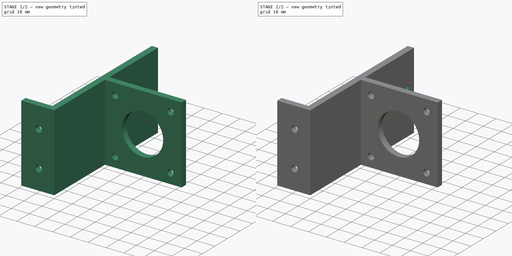
[diagram: build sequence overview — one tinted view per stage of 2, left to right]
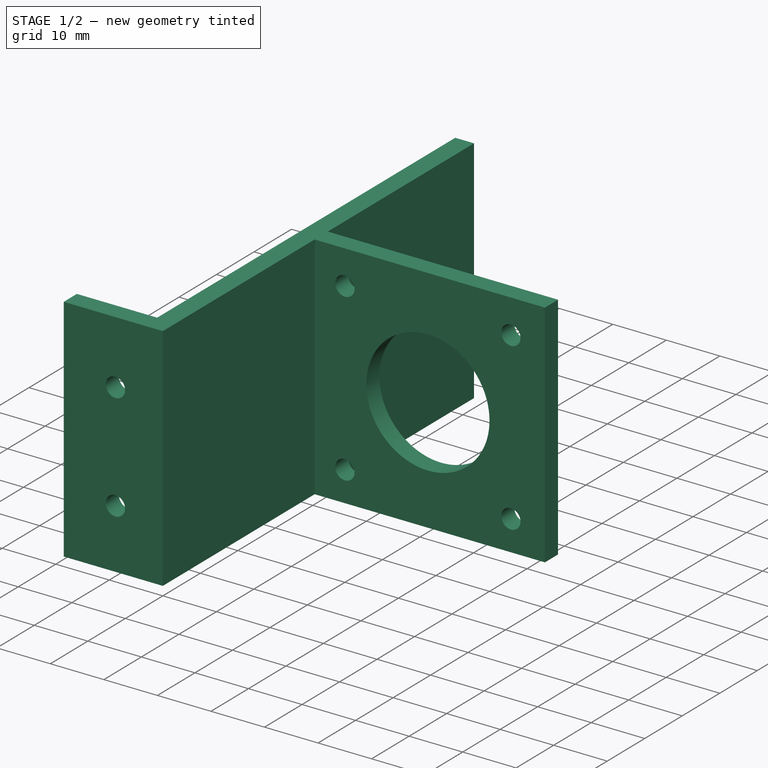
[diagram: stage 1 of 2 — iso view after this stage's code; geometry added in this stage tinted green]
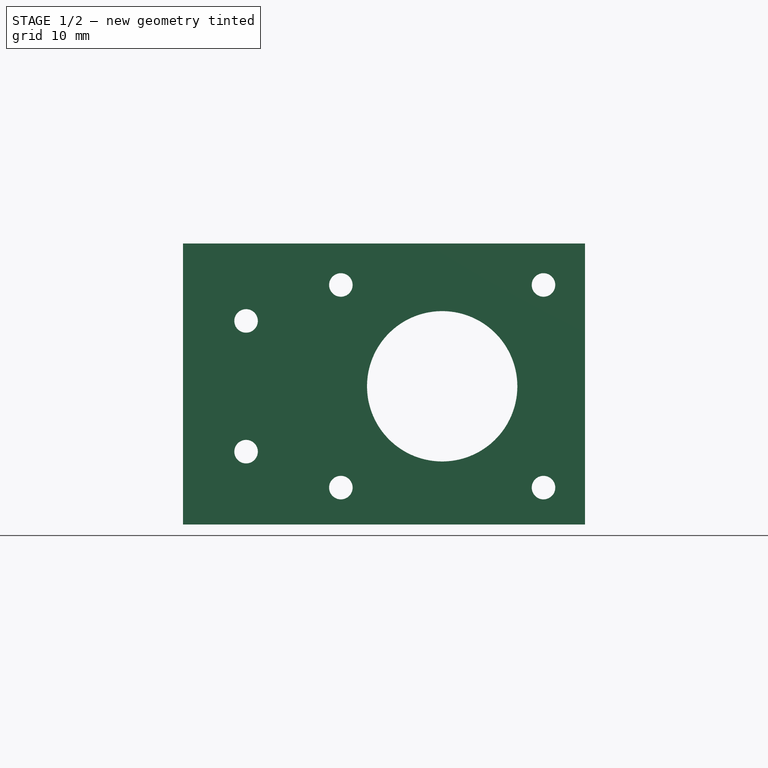
[diagram: stage 1 of 2 — front view after this stage's code; geometry added in this stage tinted green]
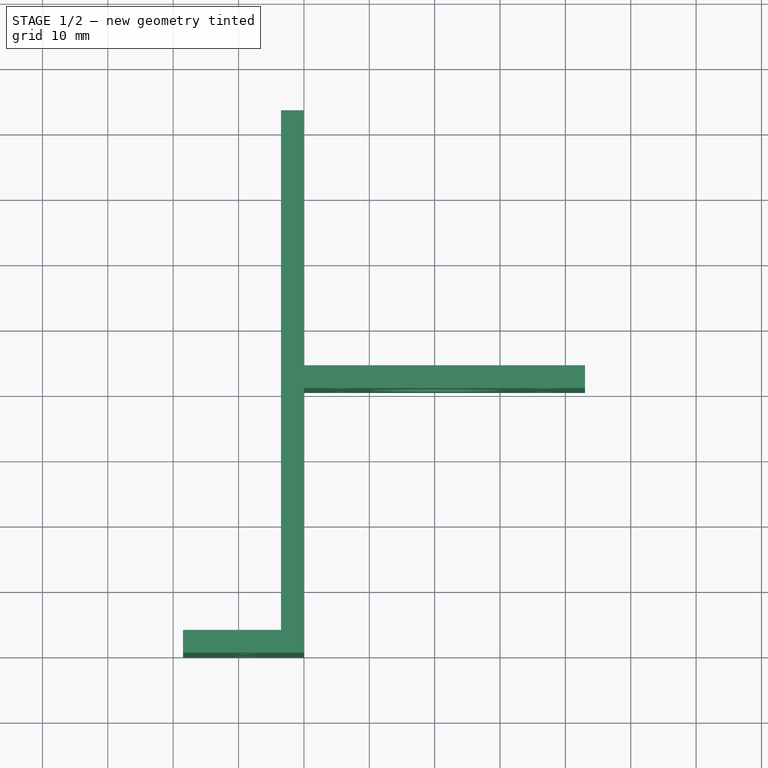
[diagram: stage 1 of 2 — top view after this stage's code; geometry added in this stage tinted green]
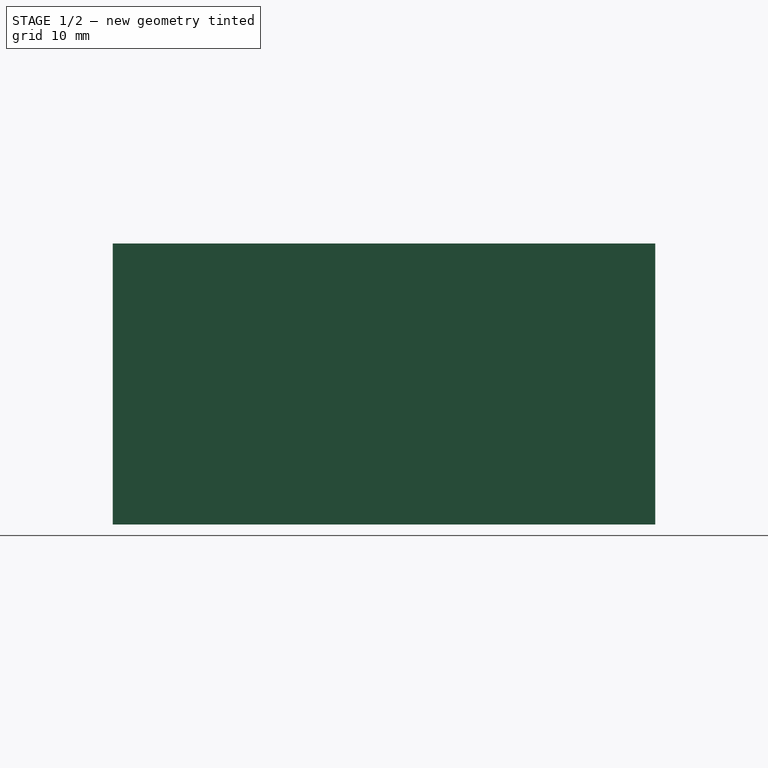
[diagram: stage 1 of 2 — right view after this stage's code; geometry added in this stage tinted green]
FCSTD DOCUMENT  (FreeCAD 0.16R6706 (Git))
Label: Suporte Motor Piso
License: All rights reserved
LicenseURL: http://en.wikipedia.org/wiki/All_rights_reserved
objects: Sketcher::SketchObject×3, PartDesign::Pocket×2, PartDesign::Pad×1
note: 9 computed .brp shape members not serialized (recipe doc carries the construction recipe); baked Part::Feature solids carry a one-line shape summary decoded from their .brp

FEATURE [Sketcher::SketchObject] Sketch
  sketch-geometry (10):
    g0: LineSegment StartX=-18.5 StartY=3.5 StartZ=0 EndX=-3.5 EndY=3.5 EndZ=0
    g1: LineSegment StartX=-3.5 StartY=3.5 StartZ=0 EndX=-3.5 EndY=83 EndZ=0
    g2: LineSegment StartX=-3.5 StartY=83 StartZ=0 EndX=0 EndY=83 EndZ=0
    g3: LineSegment StartX=0 StartY=40.5 StartZ=0 EndX=43 EndY=40.5 EndZ=0
    g4: LineSegment StartX=43 StartY=40.5 StartZ=0 EndX=43 EndY=44 EndZ=0
    g5: LineSegment StartX=43 StartY=44 StartZ=0 EndX=0 EndY=44 EndZ=0
    g6: LineSegment StartX=0 StartY=0 StartZ=0 EndX=-18.5 EndY=0 EndZ=0
    g7: LineSegment StartX=-18.5 StartY=0 StartZ=0 EndX=-18.5 EndY=3.5 EndZ=0
    g8: LineSegment StartX=0 StartY=83 StartZ=0 EndX=0 EndY=44 EndZ=0
    g9: LineSegment StartX=0 StartY=40.5 StartZ=0 EndX=0 EndY=0 EndZ=0
  constraints (29):
    c: Coincident(g0,g1)
    c: Coincident(g1,g2)
    c: Coincident(g3,g4)
    c: Coincident(g4,g5)
    c: Coincident(g6,g7)
    c: Coincident(g7,g0)
    c: Vertical(g7)
    c: Vertical(g1)
    c: Vertical(g4)
    c: Horizontal(g6)
    c: Horizontal(g0)
    c: Horizontal(g5)
    c: Horizontal(g3)
    c: Horizontal(g2)
    c: DistanceY(g6,g1) = 83
    c: DistanceY(g7,g7) = 3.5
    c: Equal(g5,g3)
    c: Equal(g4,g7)
    c: Equal(g7,g2)
    c: DistanceX(g5,g5) = 43
    c: Coincident(g5,g8)
    c: Coincident(g2,g8)
    c: Vertical(g8)
    c: Coincident(g9,g3)
    c: Coincident(g9,g6)
    c: Vertical(g9)
    c: DistanceX(g0,g0) = 15
    c: Coincident(g6,g-1)
    c: DistanceY(g-1,g3) = 40.5
FEATURE [PartDesign::Pad] Pad
  Length = 43
  Length2 = 100
  Sketch = -> Sketch
  Type = 0
FEATURE [Sketcher::SketchObject] Sketch001
  ExternalGeometry = -> [Pad]
  Placement = pos=(0,0,0) rot=(1,0,0;1.5708rad)
  Support = -> Pad [Face2]
  sketch-geometry (13):
    g0: LineSegment [constr] StartX=5.65 StartY=36.65 StartZ=0 EndX=36.65 EndY=36.65 EndZ=0
    g1: LineSegment [constr] StartX=36.65 StartY=36.65 StartZ=0 EndX=36.65 EndY=5.65 EndZ=0
    g2: LineSegment [constr] StartX=36.65 StartY=5.65 StartZ=0 EndX=5.65 EndY=5.65 EndZ=0
    g3: LineSegment [constr] StartX=5.65 StartY=5.65 StartZ=0 EndX=5.65 EndY=36.65 EndZ=0
    g4: Circle CenterX=21.15 CenterY=21.15 CenterZ=0 NormalX=0 NormalY=0 NormalZ=1 Radius=11.5
    g5: Circle CenterX=5.65 CenterY=36.65 CenterZ=0 NormalX=0 NormalY=0 NormalZ=1 Radius=1.8
    g6: Circle CenterX=36.65 CenterY=36.65 CenterZ=0 NormalX=0 NormalY=0 NormalZ=1 Radius=1.8
    g7: Circle CenterX=36.65 CenterY=5.65 CenterZ=0 NormalX=0 NormalY=0 NormalZ=1 Radius=1.8
    g8: Circle CenterX=5.65 CenterY=5.65 CenterZ=0 NormalX=0 NormalY=0 NormalZ=1 Radius=1.8
    g9: Circle CenterX=-8.85 CenterY=31.15 CenterZ=0 NormalX=0 NormalY=0 NormalZ=1 Radius=1.8
    g10: Circle CenterX=-8.85 CenterY=11.15 CenterZ=0 NormalX=0 NormalY=0 NormalZ=1 Radius=1.8
    g11: LineSegment [constr] StartX=-8.85 StartY=31.15 StartZ=0 EndX=-8.85 EndY=11.15 EndZ=0
    g12: LineSegment [constr] StartX=21.15 StartY=21.15 StartZ=0 EndX=-8.85 EndY=21.15 EndZ=0
  constraints (32):
    c: Coincident(g0,g1)
    c: Coincident(g1,g2)
    c: Coincident(g2,g3)
    c: Coincident(g3,g0)
    c: Horizontal(g0)
    c: Horizontal(g2)
    c: Vertical(g1)
    c: Vertical(g3)
    c: DistanceX(g2,g2) = 31
    c: Equal(g2,g1)
    c: Radius(g4) = 11.5
    c: Symmetric(g0,g2,g4)
    c: Radius(g5) = 1.8
    c: Equal(g5,g6) = 1.8
    c: Equal(g5,g7) = 1.8
    c: Equal(g5,g8) = 1.8
    c: Equal(g5,g9) = 1.8
    c: Equal(g5,g10) = 1.8
    c: Vertical(g11)
    c: DistanceY(g11,g11) = 20
    c: Coincident(g11,g10)
    c: Coincident(g9,g11)
    c: Coincident(g0,g5)
    c: Coincident(g0,g6)
    c: Coincident(g1,g7)
    c: Coincident(g8,g2)
    c: DistanceX(g-1,g2) = 5.65
    c: DistanceY(g-1,g2) = 5.65
    c: Horizontal(g12)
    c: Coincident(g4,g12)
    c: DistanceX(g12,g12) = 30
    c: Symmetric(g9,g10,g12)
FEATURE [PartDesign::Pocket] Pocket
  Length = 5
  Sketch = -> Sketch001
  Type = 1
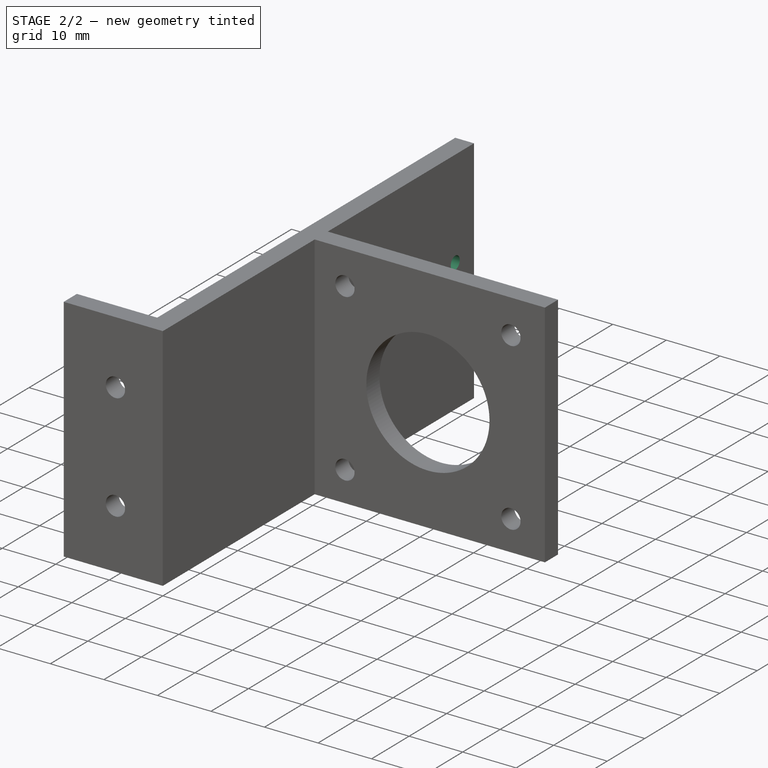
[diagram: stage 2 of 2 — iso view after this stage's code; geometry added in this stage tinted green]
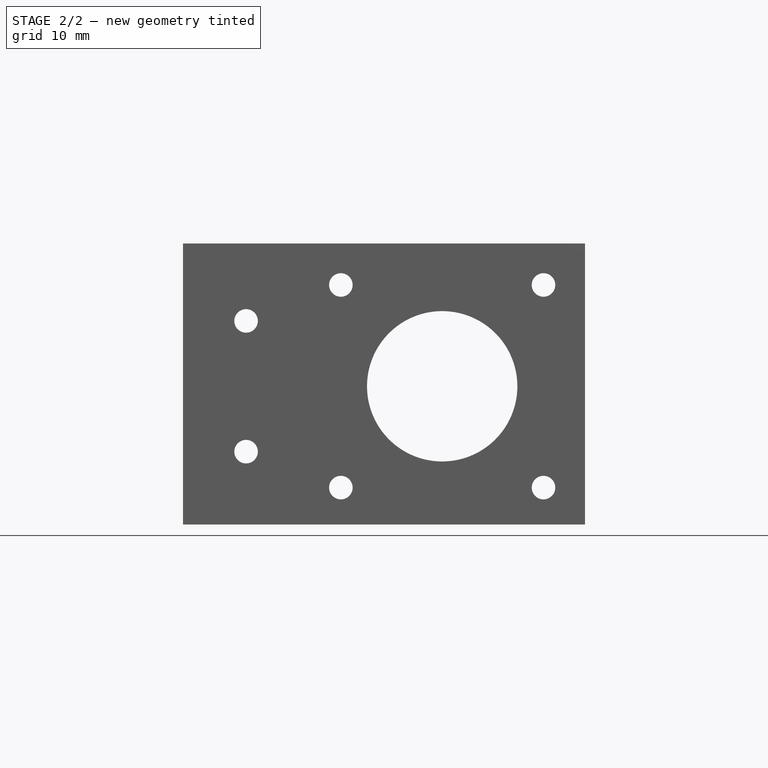
[diagram: stage 2 of 2 — front view after this stage's code; geometry added in this stage tinted green]
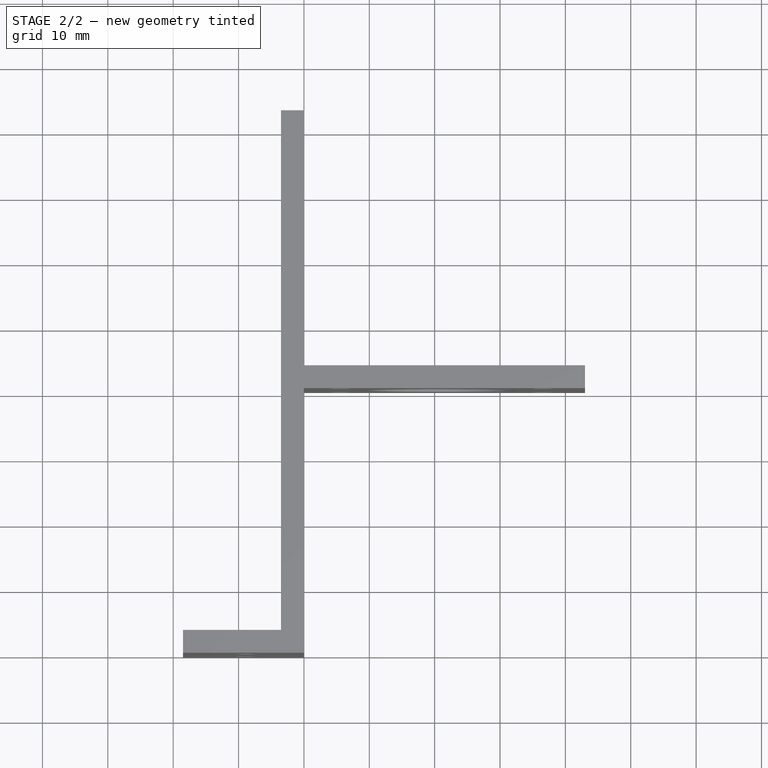
[diagram: stage 2 of 2 — top view after this stage's code; geometry added in this stage tinted green]
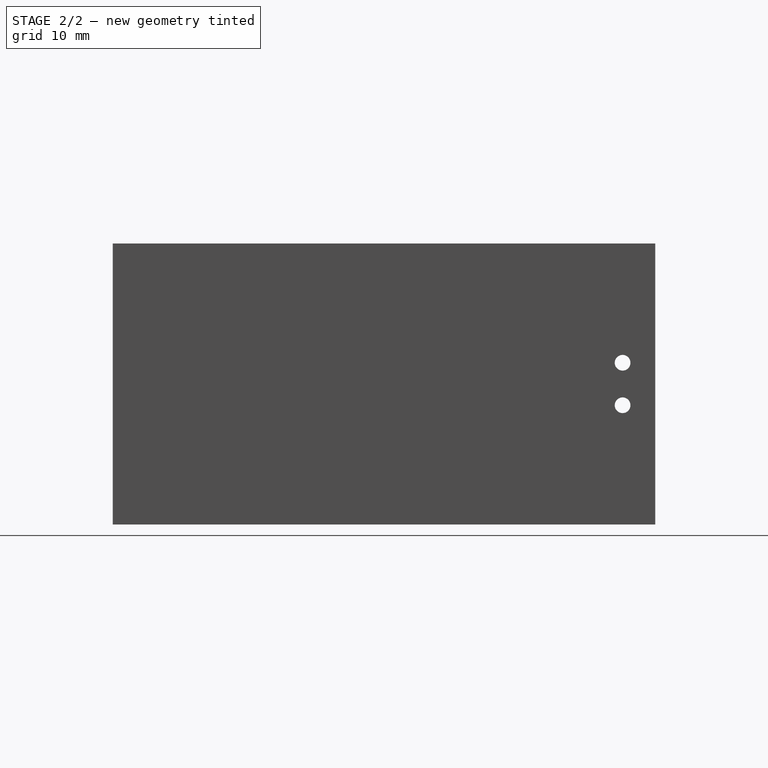
[diagram: stage 2 of 2 — right view after this stage's code; geometry added in this stage tinted green]
FEATURE [Sketcher::SketchObject] Sketch002
  ExternalGeometry = -> [Pocket]
  Placement = pos=(0,0,0) rot=(0.57735,0.57735,0.57735;2.0944rad)
  Support = -> Pocket [Face1]
  sketch-geometry (4):
    g0: LineSegment [constr] StartX=78 StartY=21.5 StartZ=0 EndX=83 EndY=21.5 EndZ=0
    g1: LineSegment [constr] StartX=78 StartY=24.75 StartZ=0 EndX=78 EndY=18.25 EndZ=0
    g2: Circle CenterX=78 CenterY=24.75 CenterZ=0 NormalX=0 NormalY=0 NormalZ=1 Radius=1.2
    g3: Circle CenterX=78 CenterY=18.25 CenterZ=0 NormalX=0 NormalY=0 NormalZ=1 Radius=1.2
  constraints (10):
    c: Horizontal(g0)
    c: Vertical(g1)
    c: DistanceX(g0,g0) = 5
    c: DistanceY(g1,g1) = 6.5
    c: Radius(g2) = 1.2
    c: Equal(g2,g3) = 1.2
    c: Coincident(g1,g2)
    c: Coincident(g1,g3)
    c: Symmetric(g-4,g-4,g0)
    c: Symmetric(g1,g1,g0)
FEATURE [PartDesign::Pocket] Pocket001
  Length = 5
  Sketch = -> Sketch002
  Type = 2
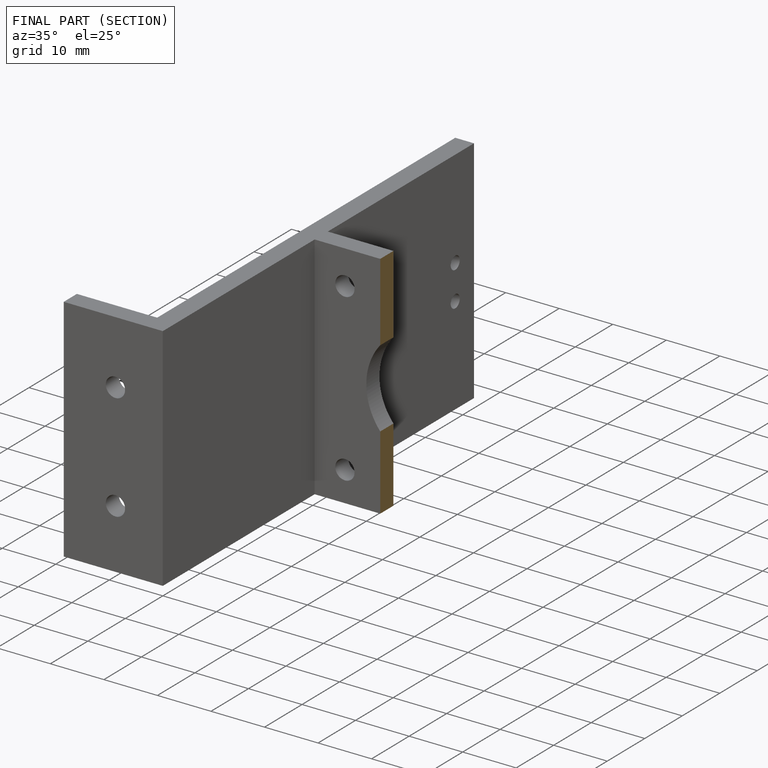
[diagram: finished part — half-section view (interior)]
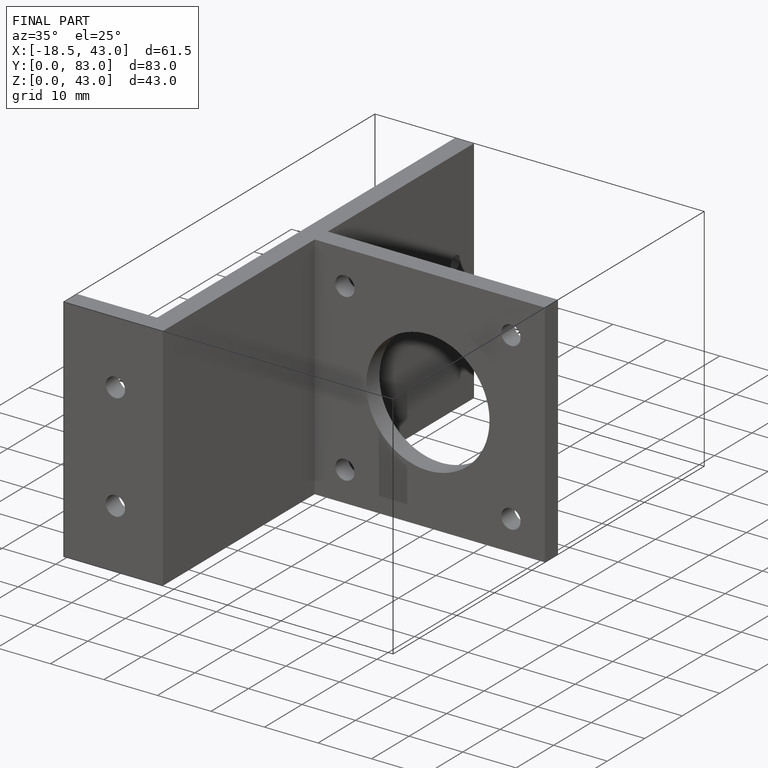
[diagram: finished part — iso view with bounding-box wireframe]
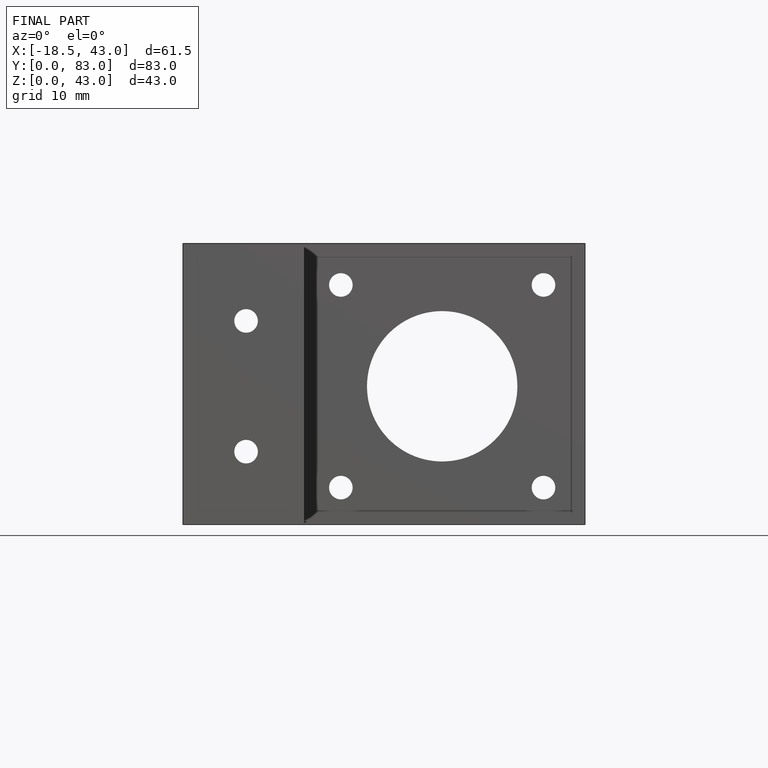
[diagram: finished part — front view with bounding-box wireframe]
